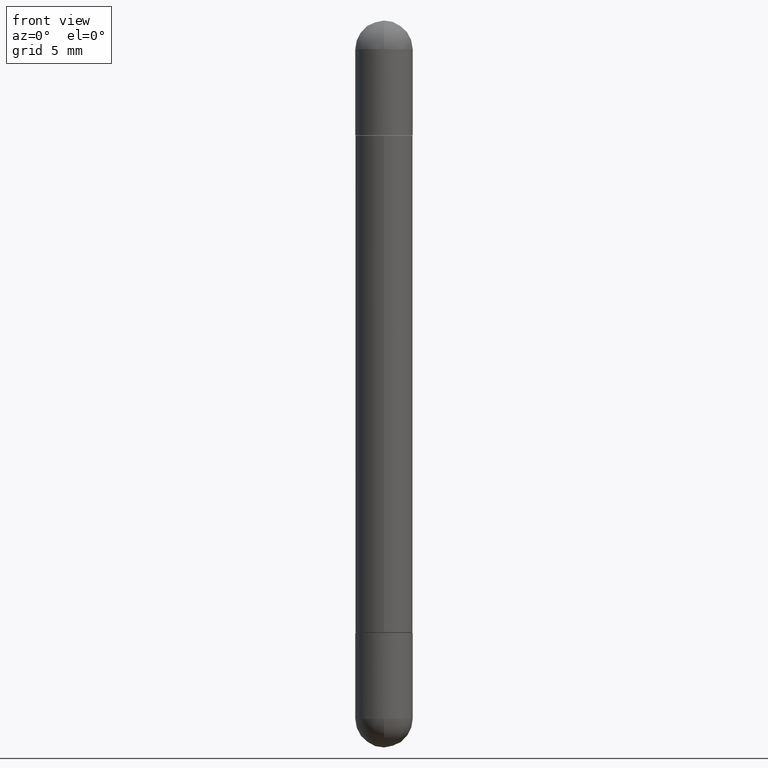
[diagram: clean part render]
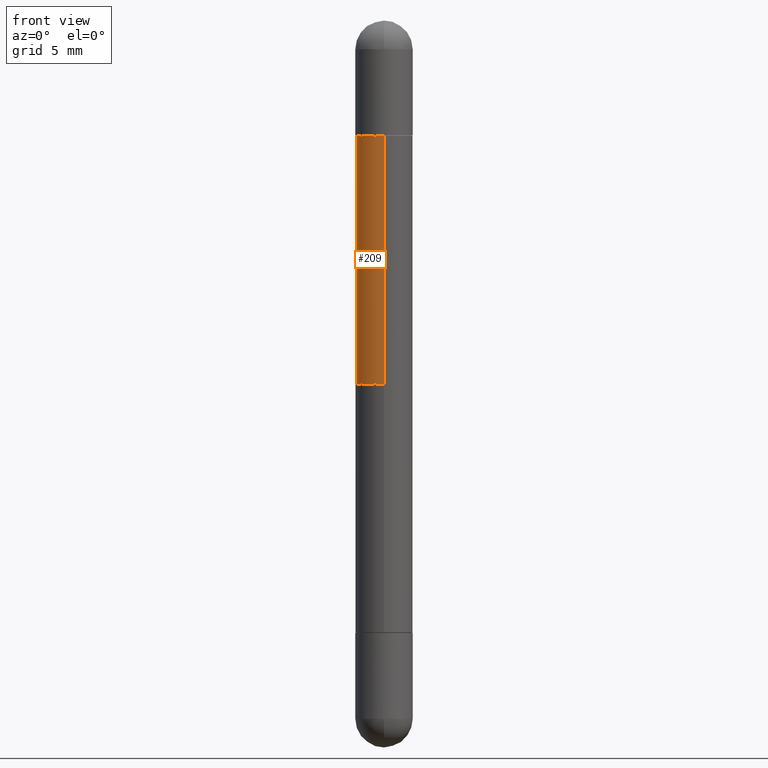
[diagram: same view with one face highlighted and labeled with its STEP entity id]
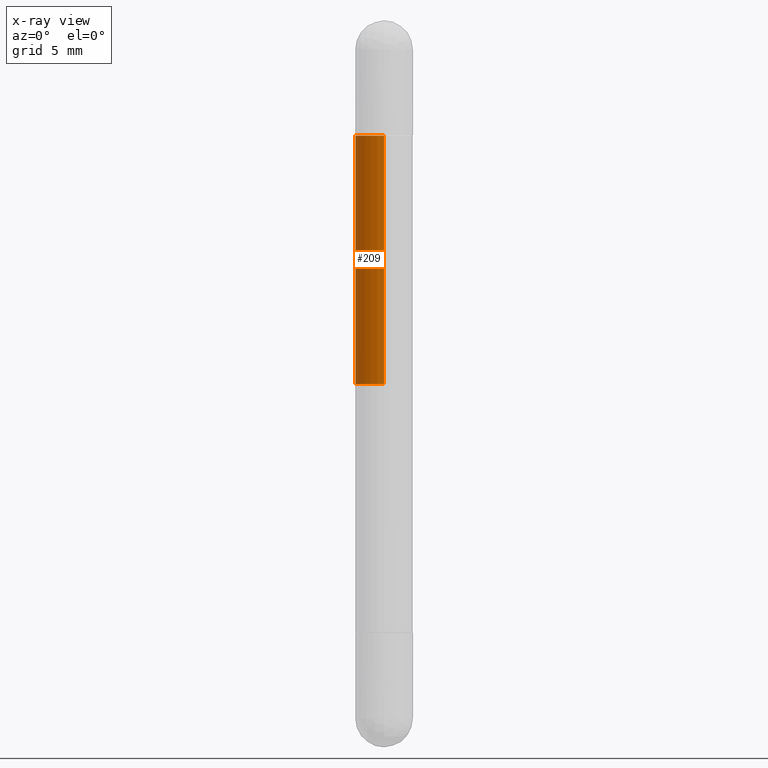
[diagram: x-ray of the same camera — body ghosted, the highlighted face saturated]
A machine part, front view. The second image highlights one B-rep face of the part: STEP entity #209.
The next image is the same camera in x-ray: the body ghosted, the highlighted face saturated — about 0% of this face is hidden behind the body in this view.
In plain terms, the highlighted cylindrical surface (edge-blend (fillet) strip) has radius 1.4999 mm, axis along (-0, 0, -1).
Its self-contained STEP definition (entity closure, byte-faithful):
#7 = ORIENTED_EDGE ( 'NONE', *, *, #535, .F. ) ;
#9 = CARTESIAN_POINT ( 'NONE',  ( 1.835116804988446223E-29, -2.603519792329481591E-15, -0.7480500000000001037 ) ) ;
#37 = DIRECTION ( 'NONE',  ( -2.453200728545479340E-29, 3.480408785949443313E-15, -1.000000000000000000 ) ) ;
#56 = FACE_OUTER_BOUND ( 'NONE', #492, .T. ) ;
#60 = CARTESIAN_POINT ( 'NONE',  ( 4.051124067684407678E-16, 0.05904999999999575866, -0.2371999999999999387 ) ) ;
#62 = EDGE_CURVE ( 'NONE', #619, #436, #349, .T. ) ;
#77 = DIRECTION ( 'NONE',  ( -1.000000000000000000, 0.000000000000000000, 0.000000000000000000 ) ) ;
#116 = CIRCLE ( 'NONE', #325, 0.05905000000000013710 ) ;
#172 = VECTOR ( 'NONE', #455, 39.37007874015748143 ) ;
#179 = DIRECTION ( 'NONE',  ( -6.982962677686265922E-15, -1.000000000000000000, -3.469747663417769114E-15 ) ) ;
#184 = EDGE_CURVE ( 'NONE', #619, #605, #116, .T. ) ;
#188 = DIRECTION ( 'NONE',  ( -6.982962677686265922E-15, -1.000000000000000000, -4.626330217890363814E-15 ) ) ;
#209 = ADVANCED_FACE ( 'NONE', ( #56 ), #494, .T. ) ;
#214 = LINE ( 'NONE', #579, #172 ) ;
#246 = EDGE_CURVE ( 'NONE', #605, #798, #214, .T. ) ;
#292 = CARTESIAN_POINT ( 'NONE',  ( 4.051124067684401762E-16, 0.05904999999999747257, -0.7480500000000001037 ) ) ;
#325 = AXIS2_PLACEMENT_3D ( 'NONE', #814, #631, #179 ) ;
#349 = LINE ( 'NONE', #742, #730 ) ;
#436 = VERTEX_POINT ( 'NONE', #292 ) ;
#455 = DIRECTION ( 'NONE',  ( -2.453200728545479340E-29, 3.480408785949443313E-15, -1.000000000000000000 ) ) ;
#469 = ORIENTED_EDGE ( 'NONE', *, *, #246, .F. ) ;
#474 = CARTESIAN_POINT ( 'NONE',  ( -4.123439461173499231E-16, -0.05905000000000267674, -0.7480500000000001037 ) ) ;
#492 = EDGE_LOOP ( 'NONE', ( #794, #693, #7, #469 ) ) ;
#494 = CYLINDRICAL_SURFACE ( 'NONE', #699, 0.05905000000000007465 ) ;
#535 = EDGE_CURVE ( 'NONE', #798, #436, #616, .T. ) ;
#579 = CARTESIAN_POINT ( 'NONE',  ( -4.123439461173745257E-16, -0.05905000000000007465, -1.496100000000000430 ) ) ;
#605 = VERTEX_POINT ( 'NONE', #637 ) ;
#616 = CIRCLE ( 'NONE', #630, 0.05905000000000007465 ) ;
#619 = VERTEX_POINT ( 'NONE', #60 ) ;
#630 = AXIS2_PLACEMENT_3D ( 'NONE', #9, #761, #77 ) ;
#631 = DIRECTION ( 'NONE',  ( 2.453200728545479621E-29, -3.480408785949443313E-15, 1.000000000000000000 ) ) ;
#637 = CARTESIAN_POINT ( 'NONE',  ( -4.123439461173440067E-16, -0.05905000000000451554, -0.2372000000000003272 ) ) ;
#682 = CARTESIAN_POINT ( 'NONE',  ( 0.000000000000000000, 0.000000000000000000, -1.496100000000000207 ) ) ;
#693 = ORIENTED_EDGE ( 'NONE', *, *, #62, .T. ) ;
#699 = AXIS2_PLACEMENT_3D ( 'NONE', #682, #754, #188 ) ;
#730 = VECTOR ( 'NONE', #37, 39.37007874015748143 ) ;
#742 = CARTESIAN_POINT ( 'NONE',  ( 4.051124067684094106E-16, 0.05905000000000007465, -1.496099999999999985 ) ) ;
#754 = DIRECTION ( 'NONE',  ( -2.453200728545479621E-29, 3.480408785949443313E-15, -1.000000000000000000 ) ) ;
#761 = DIRECTION ( 'NONE',  ( -0.000000000000000000, -0.000000000000000000, -1.000000000000000000 ) ) ;
#794 = ORIENTED_EDGE ( 'NONE', *, *, #184, .F. ) ;
#798 = VERTEX_POINT ( 'NONE', #474 ) ;
#814 = CARTESIAN_POINT ( 'NONE',  ( 3.088334397165904554E-29, -4.381486620631754468E-15, -0.2372000000000001330 ) ) ;